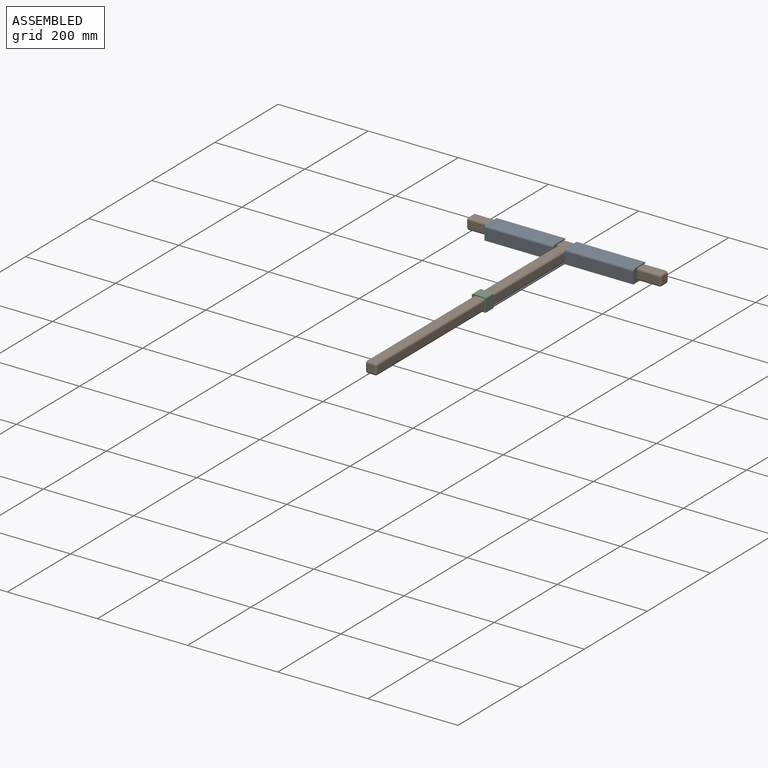
[diagram: assembled view]
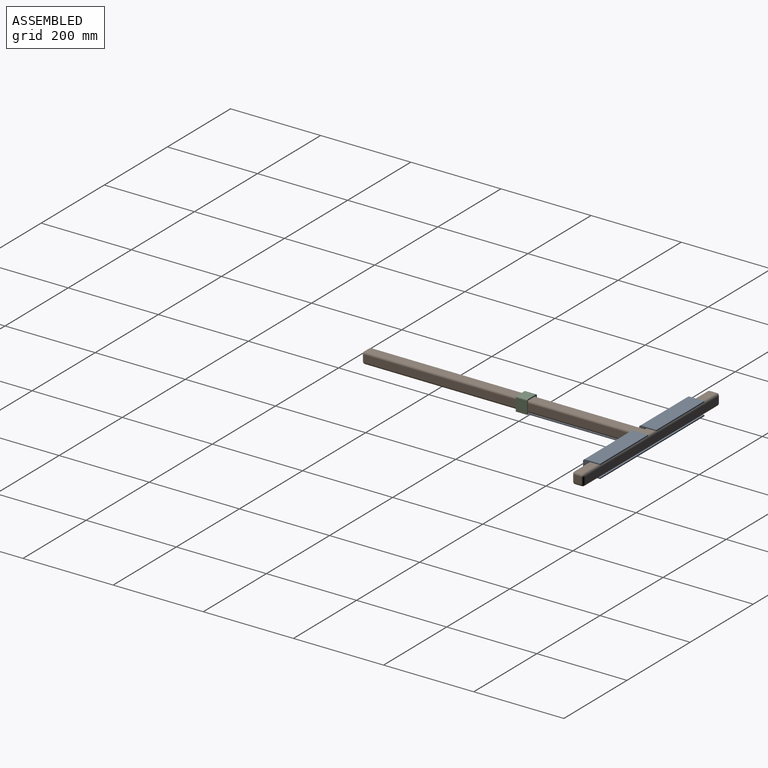
[diagram: assembled view, second angle]
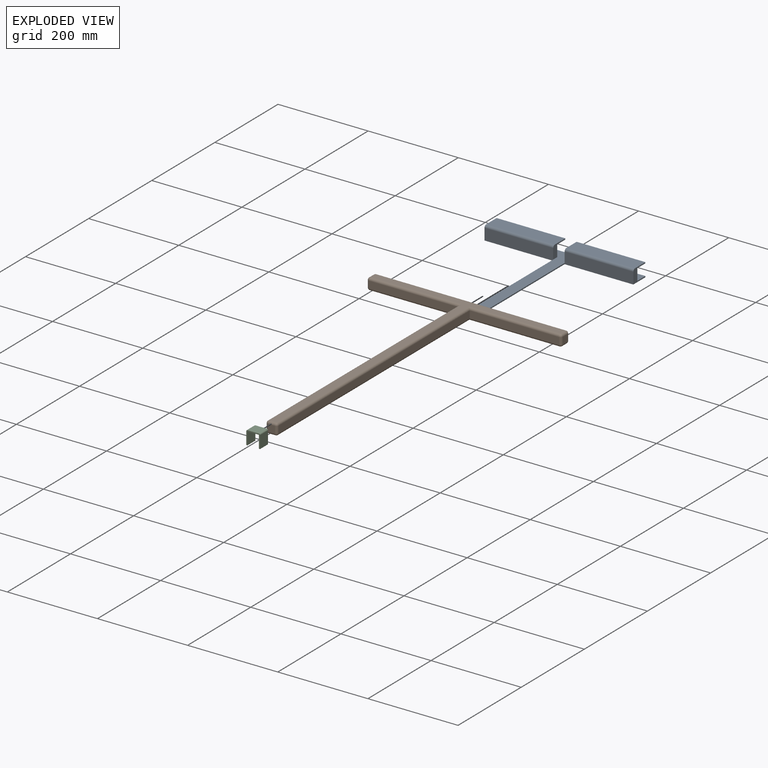
[diagram: exploded view]
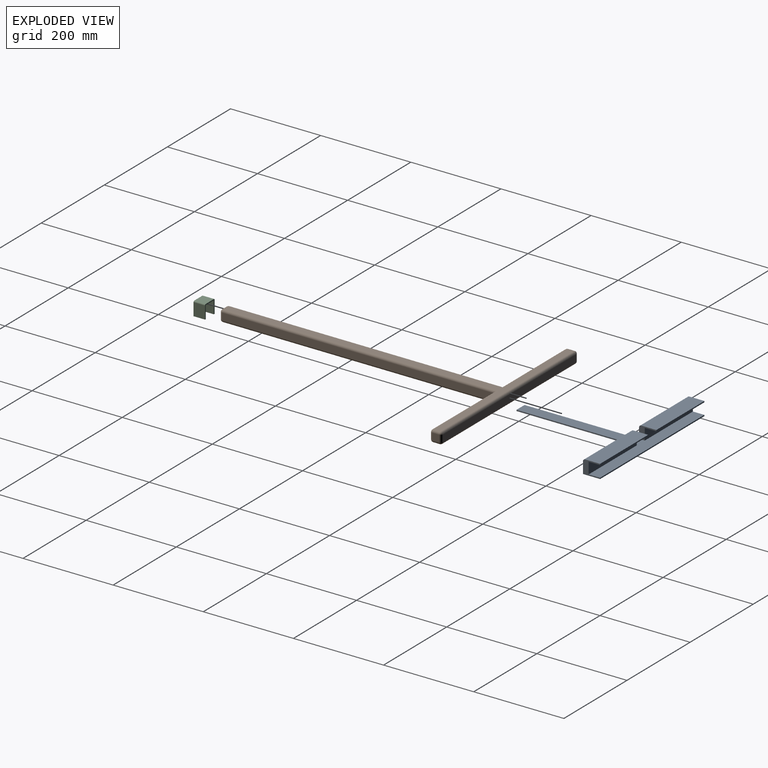
[diagram: exploded view, second angle]
ASSEMBLY  parts=3 mates=5
PART A: 22 faces, bbox 330.2x292.3x30.5 mm
  f0: plane 330.2x292.1mm, normal (0,0,1), area 15161.3mm2, adj f1,f2,f4,f5,f6,f8,f10,f11
  f1: plane 330.2x2.54mm, normal (0,1,0), area 838.7mm2, adj f0,f2,f8,f9
  f2: plane 38.28x30.48mm, normal (-1,0,0), area 511mm2, adj f0,f1,f3,f9,f11,f14,f15,f16
  f3: plane 152.4x25.4mm, normal (0,-1,0), area 3871mm2, adj f2,f4,f9,f10,f21
  f4: plane 254x2.54mm, normal (-1,0,0), area 645.2mm2, adj f0,f3,f5,f9
  f5: plane 25.4x2.54mm, normal (0,-1,0), area 64.5mm2, adj f0,f4,f6,f9
  f6: plane 254x2.54mm, normal (1,0,0), area 645.2mm2, adj f0,f5,f7,f9
  f7: plane 152.4x25.4mm, normal (0,-1,0), area 3871mm2, adj f6,f8,f9,f12,f20
  f8: plane 38.1x30.48mm, normal (1,0,0), area 510.3mm2, adj f0,f1,f7,f9,f13,f17,f18,f19
  f9: plane 330.2x292.1mm, normal (0,0,-1), area 19032.2mm2, adj f1,f2,f3,f4,f5,f6,f7,f8
  f10: plane 38.28x27.94mm, normal (1,0,0), area 414.3mm2, adj f0,f3,f11,f14,f15,f16,f21
  f11: plane 152.4x25.4mm, normal (0,1,0), area 3871mm2, adj f0,f2,f10,f14
  f12: plane 38x27.94mm, normal (-1,0,0), area 413.6mm2, adj f0,f7,f13,f17,f18,f19,f20
  f13: plane 152.4x25.4mm, normal (0,1,0), area 3871mm2, adj f0,f8,f12,f19
  f14: plane 152.4x25.58mm, normal (0,0,-1), area 3897.9mm2, adj f2,f10,f11,f15
  f15: plane 152.4x2.54mm, normal (0,1,0), area 387.1mm2, adj f2,f10,f14,f16
  f16: plane 152.4x33.2mm, normal (0,0,1), area 5059.2mm2, adj f2,f10,f15,f21
  f17: plane 152.4x2.54mm, normal (0,1,0), area 387.1mm2, adj f8,f12,f18,f19
  f18: plane 152.4x32.92mm, normal (0,0,1), area 5016.3mm2, adj f8,f12,f17,f20
  f19: plane 152.4x25.3mm, normal (0,0,-1), area 3855.1mm2, adj f8,f12,f13,f17
  f20: cylinder r=5.08mm len=152.4mm, axis (-1,0,0), area 1216.1mm2, adj f7,f8,f12,f18
  f21: cylinder r=5.08mm len=152.4mm, axis (-1,0,0), area 1216.1mm2, adj f2,f3,f10,f16
PART B: 44 faces, bbox 431.8x634.8x25.4 mm
  f0: plane 604.52x15.24mm, normal (-1,0,0), area 9212.9mm2, adj f7,f11,f13,f41
  f1: plane 15.24x15.24mm, normal (0,-1,0), area 232.3mm2, adj f37,f38,f41,f42
  f2: plane 604.52x15.24mm, normal (1,0,0), area 9212.9mm2, adj f3,f10,f12,f38
  f3: plane 198.11x15.24mm, normal (0,-1,0), area 3019.3mm2, adj f2,f14,f16,f21
  f4: plane 15.24x15.23mm, normal (1,0,0), area 232.2mm2, adj f21,f22,f25,f26
  f5: plane 421.64x15.24mm, normal (0,1,0), area 6425.8mm2, adj f18,f19,f26,f33
  f6: plane 15.24x15.23mm, normal (-1,0,0), area 232.2mm2, adj f29,f30,f33,f34
  f7: plane 198.11x15.24mm, normal (0,-1,0), area 3019.3mm2, adj f0,f15,f17,f30
  f8: plane 624.6x421.64mm, normal (0,0,1), area 15660.1mm2, adj f10,f11,f14,f15,f18,f22,f29,f37
  f9: plane 624.6x421.64mm, normal (0,0,-1), area 15660.1mm2, adj f12,f13,f16,f17,f19,f25,f34,f42
  f10: cylinder r=5.08mm len=609.61mm, axis (0,-1,0), area 4838.6mm2, adj f2,f8,f14,f36
  f11: cylinder r=5.08mm len=609.61mm, axis (0,1,0), area 4838.6mm2, adj f0,f8,f15,f39
  f12: cylinder r=5.08mm len=609.61mm, axis (0,1,0), area 4838.6mm2, adj f2,f9,f16,f40
  f13: cylinder r=5.08mm len=609.61mm, axis (0,-1,0), area 4838.6mm2, adj f0,f9,f17,f43
  f14: cylinder r=5.08mm len=203.21mm, axis (-1,0,0), area 1595.6mm2, adj f3,f8,f10,f20
  f15: cylinder r=5.08mm len=203.21mm, axis (-1,0,0), area 1595.6mm2, adj f7,f8,f11,f28
  f16: cylinder r=5.08mm len=203.21mm, axis (1,0,0), area 1595.6mm2, adj f3,f9,f12,f23
  f17: cylinder r=5.08mm len=203.21mm, axis (1,0,0), area 1595.6mm2, adj f7,f9,f13,f32
  f18: cylinder r=5.08mm len=421.64mm, axis (1,0,0), area 3364.5mm2, adj f5,f8,f24,f31
  f19: cylinder r=5.08mm len=421.64mm, axis (-1,0,0), area 3364.5mm2, adj f5,f9,f27,f35
  f20: sphere r=5.08mm, area 40.6mm2, adj f14,f21,f22
  f21: cylinder r=5.08mm len=15.24mm, axis (0,0,1), area 121.7mm2, adj f3,f4,f20,f23
  f22: cylinder r=5.08mm len=15.23mm, axis (0,-1,0), area 121.6mm2, adj f4,f8,f20,f24
  f23: sphere r=5.08mm, area 40.6mm2, adj f16,f21,f25
  f24: sphere r=5.08mm, area 40.5mm2, adj f18,f22,f26
  f25: cylinder r=5.08mm len=15.23mm, axis (0,1,0), area 121.6mm2, adj f4,f9,f23,f27
  f26: cylinder r=5.08mm len=15.24mm, axis (0,0,-1), area 121.6mm2, adj f4,f5,f24,f27
  f27: sphere r=5.08mm, area 40.5mm2, adj f19,f25,f26
  f28: sphere r=5.08mm, area 40.6mm2, adj f15,f29,f30
  f29: cylinder r=5.08mm len=15.23mm, axis (0,1,0), area 121.6mm2, adj f6,f8,f28,f31
  f30: cylinder r=5.08mm len=15.24mm, axis (0,0,-1), area 121.7mm2, adj f6,f7,f28,f32
  f31: sphere r=5.08mm, area 40.5mm2, adj f18,f29,f33
  f32: sphere r=5.08mm, area 40.6mm2, adj f17,f30,f34
  f33: cylinder r=5.08mm len=15.24mm, axis (0,0,1), area 121.6mm2, adj f5,f6,f31,f35
  f34: cylinder r=5.08mm len=15.23mm, axis (0,-1,0), area 121.6mm2, adj f6,f9,f32,f35
  f35: sphere r=5.08mm, area 40.5mm2, adj f19,f33,f34
  f36: sphere r=5.08mm, area 40.5mm2, adj f10,f37,f38
  f37: cylinder r=5.08mm len=15.24mm, axis (-1,0,0), area 121.6mm2, adj f1,f8,f36,f39
  f38: cylinder r=5.08mm len=15.24mm, axis (0,0,1), area 121.6mm2, adj f1,f2,f36,f40
  f39: sphere r=5.08mm, area 40.5mm2, adj f11,f37,f41
  f40: sphere r=5.08mm, area 40.5mm2, adj f12,f38,f42
  f41: cylinder r=5.08mm len=15.24mm, axis (0,0,-1), area 121.6mm2, adj f0,f1,f39,f43
  f42: cylinder r=5.08mm len=15.24mm, axis (1,0,0), area 121.6mm2, adj f1,f9,f40,f43
  f43: sphere r=5.08mm, area 40.5mm2, adj f13,f41,f42
PART C: 12 faces, bbox 30.5x25.4x30.5 mm
  f0: plane 25.4x2.54mm, normal (0,0,-1), area 64.5mm2, adj f1,f7,f8,f9
  f1: plane 27.94x25.4mm, normal (1,0,0), area 709.7mm2, adj f0,f2,f8,f9
  f2: plane 25.4x25.4mm, normal (0,0,-1), area 645.2mm2, adj f1,f3,f8,f9
  f3: plane 27.94x25.4mm, normal (-1,0,0), area 709.7mm2, adj f2,f4,f8,f9
  f4: plane 25.4x2.54mm, normal (0,0,-1), area 64.5mm2, adj f3,f5,f8,f9
  f5: plane 27.94x25.4mm, normal (1,0,0), area 709.7mm2, adj f4,f8,f9,f10
  f6: plane 25.4x25.4mm, normal (0,0,1), area 645.2mm2, adj f8,f9,f10,f11
  f7: plane 27.94x25.4mm, normal (-1,0,0), area 709.7mm2, adj f0,f8,f9,f11
  f8: plane 30.48x30.48mm, normal (0,1,0), area 216.6mm2, adj f0,f1,f2,f3,f4,f5,f6,f7
  f9: plane 30.48x30.48mm, normal (0,-1,0), area 216.6mm2, adj f0,f1,f2,f3,f4,f5,f6,f7
  f10: cylinder r=2.54mm len=25.4mm, axis (0,-1,0), area 101.3mm2, adj f5,f6,f8,f9
  f11: cylinder r=2.54mm len=25.4mm, axis (0,-1,0), area 101.3mm2, adj f6,f7,f8,f9
PLACE A t=(-141.26,167.99,-80.54)mm
PLACE B rot(axis=(0,0,-1),0.1deg) t=(-63.04,-326.92,-78)mm
PLACE C t=(-141.26,167.99,-80.54)mm
MATE planar B.f7 <-> A.f11  axis (0,-1,0) through (-174.25,165.88,-65.3)mm
MATE planar B.f9 <-> A.f0  axis (0,0,-1) through (-62.7,-6.85,-78)mm
MATE planar C.f9 <-> A.f5  axis (0,-1,0) through (-63.79,-100.82,-61.33)mm
MATE planar C.f0 <-> A.f9  axis (0,0,-1) through (-76.49,-88.12,-80.54)mm
MATE planar C.f3 <-> A.f6  axis (-1,0,0) through (-51.09,-88.12,-66.57)mm
